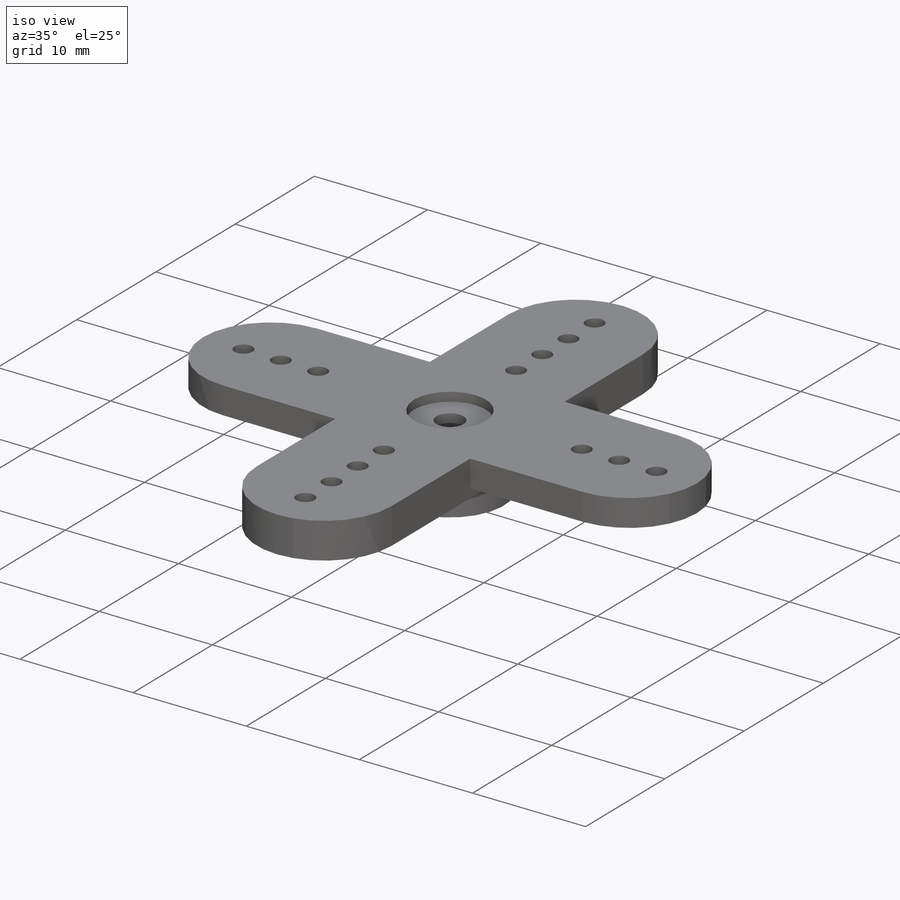
[diagram: iso view]
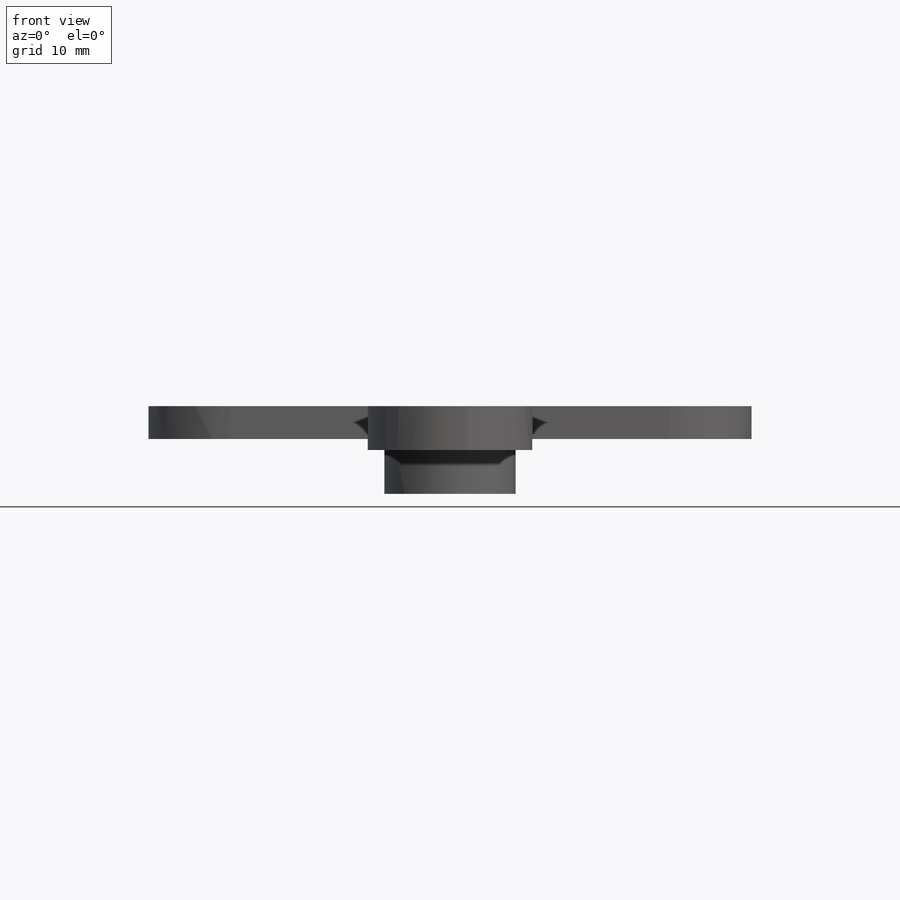
[diagram: front view]
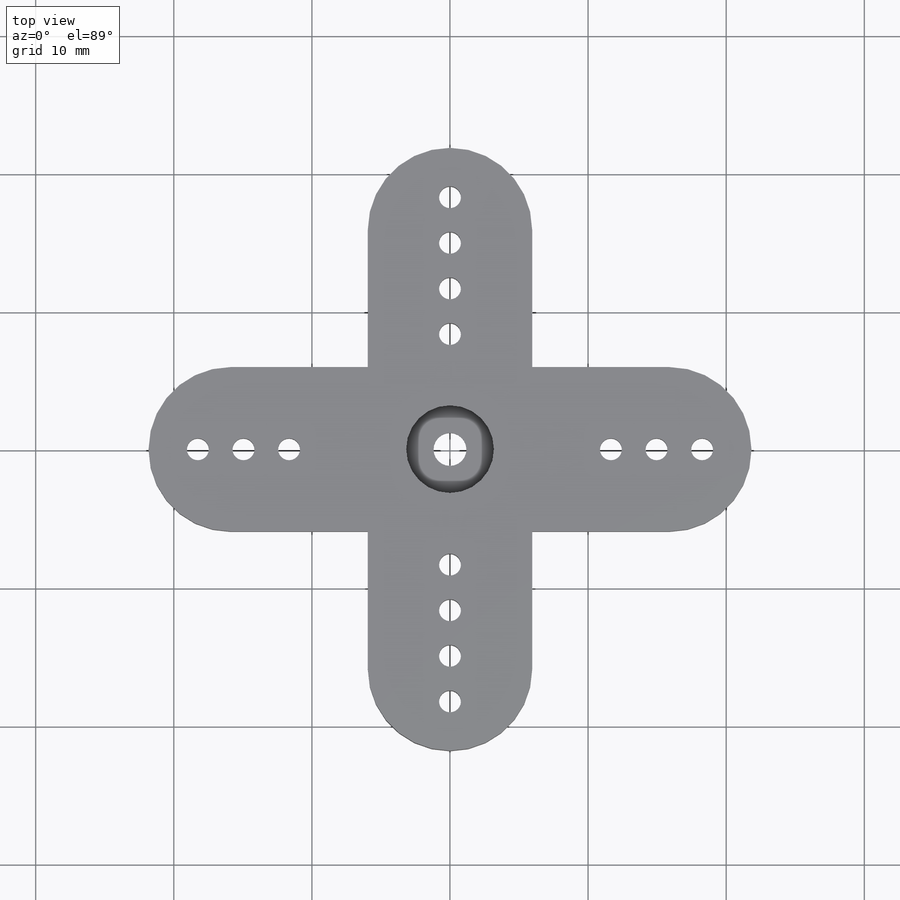
[diagram: top view]
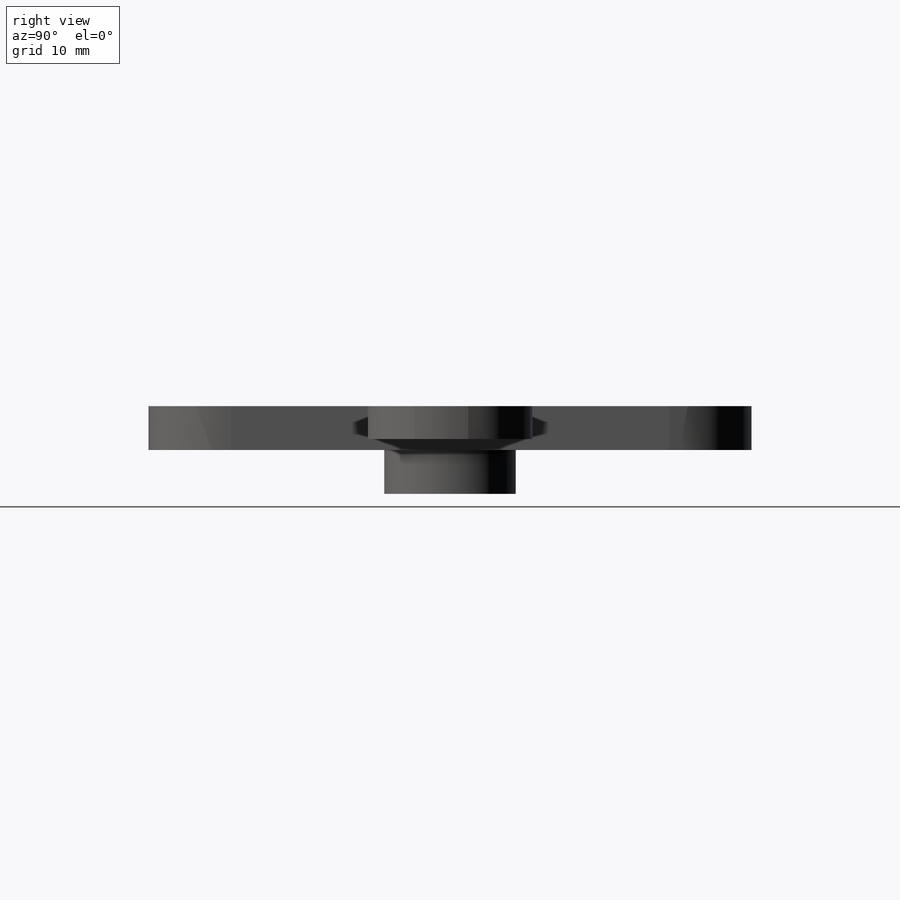
[diagram: right view]
SOLIDWORKS PART (.sldprt)
format: sldprt  version: not decoded by parser v0  size: 222,720 bytes
history: native  units: mm
features: sketch x5, cut_extrude x3, extrude x2, material x1 (+16 scaffold rows collapsed)
feature tree (27):
  scaffold x16  (default folders/planes/origin — collapsed)
  material  "Custom Plastic"
  sketch  "Sketch1"  dims[c1.D3=~5.953125mm c1.D4=~5.953125mm c1.D6=1.5875mm c1.D9=~2.38125mm c1.D1=15.875mm c1.D2=15.875mm c2.D3=31.75mm c2.D5=15.876mm c2.D6=15.874mm c3.D5=15.876mm c3.D7=19.05mm c3.D14=19.05mm c3.D8=3.0 c3.D4=2.0 c3.D10=4.0]
  extrude  "Boss-Extrude1"  Depth=3.175mm
  sketch  "Sketch3"
  cut_extrude  "Cut-Extrude1"  Depth=0.79375mm
  sketch  "Sketch4"  dims[D1=6.35mm]
  cut_extrude  "Cut-Extrude2"  Depth=0.79375mm
  sketch  "Sketch5"  dims[D1=3.1242mm]
  extrude  "Boss-Extrude2"  Depth=3.175mm
  sketch  "Sketch6"
  cut_extrude  "Cut-Extrude3"  Depth=1.5875mm
decode coverage: 8 of 10 modeling features carry decoded parameters
note: ~ marks probable driven/reference dimensions
note: suppression state not decoded; provenance and decode notes live in map.json
